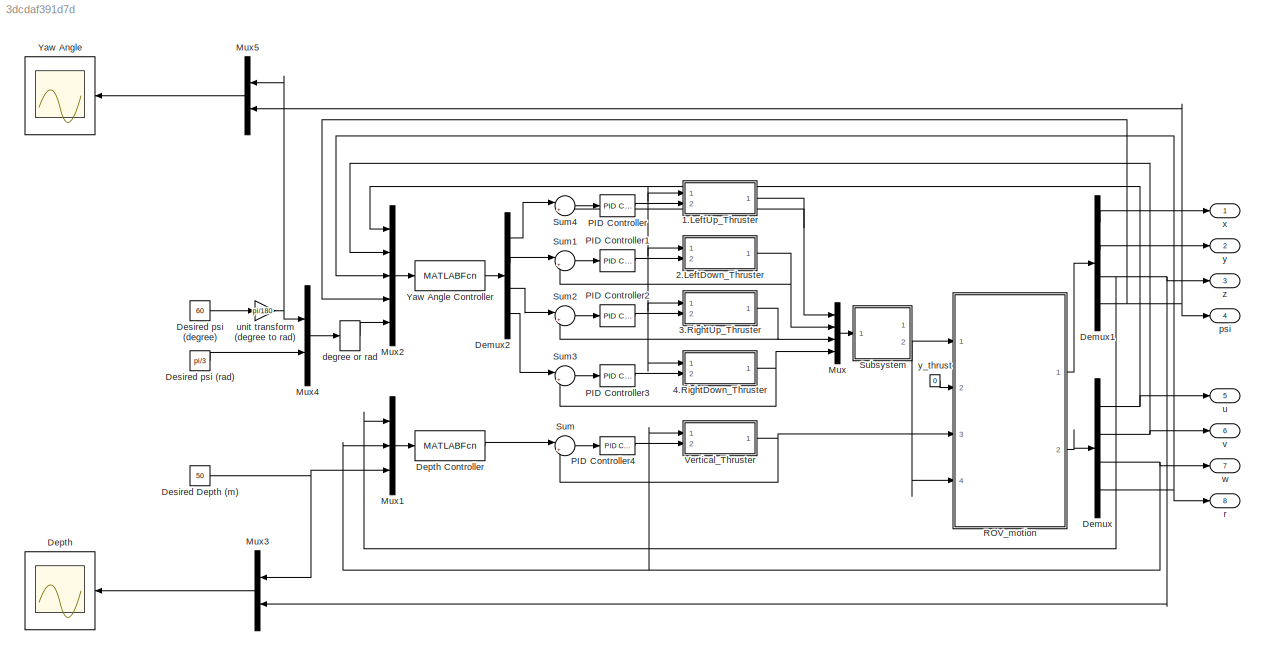
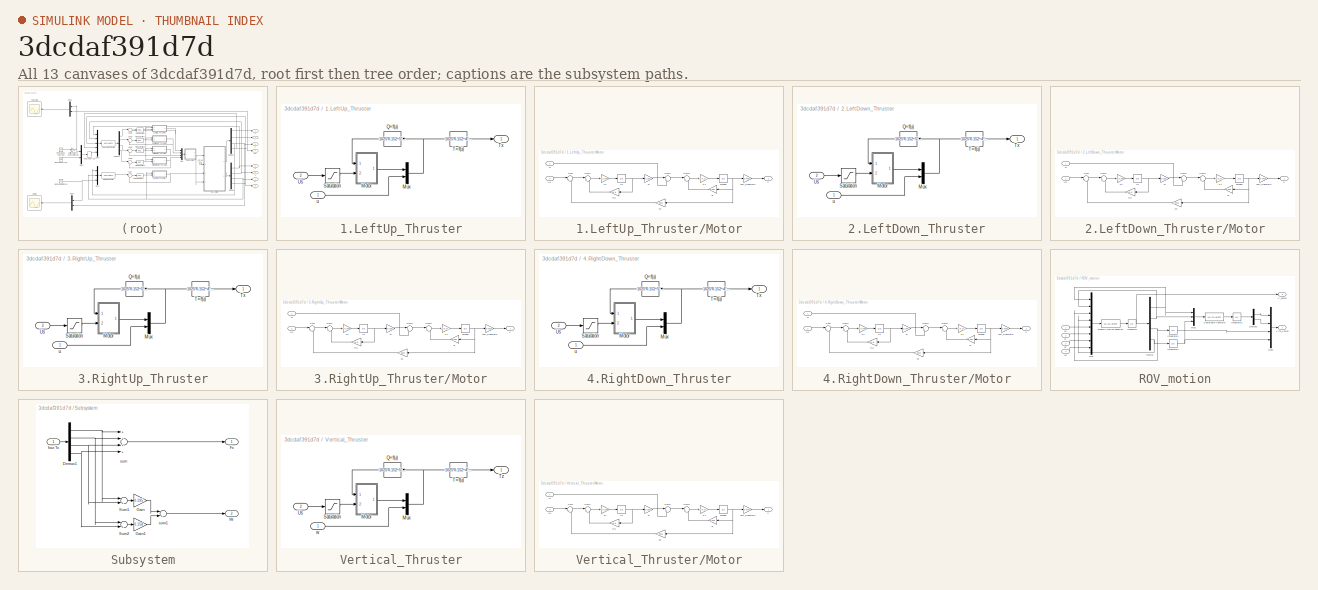
[diagram: thumbnail index - all 13 canvases of the model, root first then tree order]
MODEL slx_3dcdaf391d7d
KIND model
CONFIG AbsTol = auto
CONFIG EnableMultiTasking = off
CONFIG FixedStep = auto
CONFIG MaxStep = auto
CONFIG MinStep = auto
CONFIG RelTol = 1e-3
CONFIG SampleTimeConstraint = Unconstrained
CONFIG Solver = VariableStepAuto
CONFIG SolverName = VariableStepAuto
CONFIG StartTime = 0.0
CONFIG StopTime = 500
BLOCK [SubSystem] 1.LeftUp_Thruster
  Ports = [2, 1]
  RequestExecContextInheritance = off
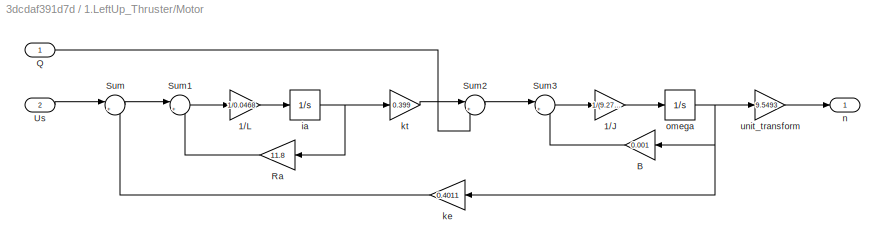
BLOCK [SubSystem] 1.LeftUp_Thruster/Motor
  Ports = [2, 1]
  RequestExecContextInheritance = off
BLOCK [Gain] 1.LeftUp_Thruster/Motor/1//J
  Gain = 1/(9.275e-4)
  OutDataTypeStr = Inherit: Inherit via internal rule
  ParamDataTypeStr = Inherit: Inherit via internal rule
  SaturateOnIntegerOverflow = off
BLOCK [Gain] 1.LeftUp_Thruster/Motor/1//L
  Gain = 1/0.0468
  OutDataTypeStr = Inherit: Inherit via internal rule
  ParamDataTypeStr = Inherit: Inherit via internal rule
  SaturateOnIntegerOverflow = off
BLOCK [Gain] 1.LeftUp_Thruster/Motor/B
  Gain = 0.001
  OutDataTypeStr = Inherit: Inherit via internal rule
  ParamDataTypeStr = Inherit: Inherit via internal rule
  SaturateOnIntegerOverflow = off
BLOCK [Inport] 1.LeftUp_Thruster/Motor/Q
  IconDisplay = Port number
BLOCK [Gain] 1.LeftUp_Thruster/Motor/Ra
  Gain = 11.8
  OutDataTypeStr = Inherit: Inherit via internal rule
  ParamDataTypeStr = Inherit: Inherit via internal rule
  SaturateOnIntegerOverflow = off
BLOCK [Sum] 1.LeftUp_Thruster/Motor/Sum
  IconShape = round
  InputSameDT = off
  Inputs = |+-
  OutDataTypeStr = Inherit: Inherit via internal rule
  Ports = [2, 1]
  SaturateOnIntegerOverflow = off
BLOCK [Sum] 1.LeftUp_Thruster/Motor/Sum1
  IconShape = round
  InputSameDT = off
  Inputs = |+-
  OutDataTypeStr = Inherit: Inherit via internal rule
  Ports = [2, 1]
  SaturateOnIntegerOverflow = off
BLOCK [Sum] 1.LeftUp_Thruster/Motor/Sum2
  IconShape = round
  InputSameDT = off
  Inputs = |+-
  OutDataTypeStr = Inherit: Inherit via internal rule
  Ports = [2, 1]
  SaturateOnIntegerOverflow = off
BLOCK [Sum] 1.LeftUp_Thruster/Motor/Sum3
  IconShape = round
  InputSameDT = off
  Inputs = |+-
  OutDataTypeStr = Inherit: Inherit via internal rule
  Ports = [2, 1]
  SaturateOnIntegerOverflow = off
BLOCK [Inport] 1.LeftUp_Thruster/Motor/Us
  IconDisplay = Port number
  Port = 2
BLOCK [Integrator] 1.LeftUp_Thruster/Motor/ia
  Ports = [1, 1]
BLOCK [Gain] 1.LeftUp_Thruster/Motor/ke
  Gain = 0.4011
  OutDataTypeStr = Inherit: Inherit via internal rule
  ParamDataTypeStr = Inherit: Inherit via internal rule
  SaturateOnIntegerOverflow = off
BLOCK [Gain] 1.LeftUp_Thruster/Motor/kt
  Gain = 0.399
  OutDataTypeStr = Inherit: Inherit via internal rule
  ParamDataTypeStr = Inherit: Inherit via internal rule
  SaturateOnIntegerOverflow = off
BLOCK [Outport] 1.LeftUp_Thruster/Motor/n
  IconDisplay = Port number
BLOCK [Integrator] 1.LeftUp_Thruster/Motor/omega
  Ports = [1, 1]
BLOCK [Gain] 1.LeftUp_Thruster/Motor/unit_transform
  Gain = 9.5493
  OutDataTypeStr = Inherit: Inherit via internal rule
  ParamDataTypeStr = Inherit: Inherit via internal rule
  SaturateOnIntegerOverflow = off
BLOCK [Mux] 1.LeftUp_Thruster/Mux
  DisplayOption = bar
  Inputs = 2
  Ports = [2, 1]
BLOCK [Fcn] 1.LeftUp_Thruster/Q=f(u)
  Expr = 1025*0.152^5*(0.0271*u(1)^2-0.0157*u(1)*0.7*u(2)/0.152)*sgn(u(1))
BLOCK [Saturate] 1.LeftUp_Thruster/Saturation
  InputPortMap = u0
  LowerLimit = -100
  Ports = [1, 1]
  UpperLimit = 100
BLOCK [Fcn] 1.LeftUp_Thruster/T=f(u)
  Expr = 1025*0.152^4*(0.2299*u(1)^2-0.2251*u(1)*0.7*u(2)/0.152)*sgn(u(1))
BLOCK [Outport] 1.LeftUp_Thruster/Tx
  IconDisplay = Port number
BLOCK [Inport] 1.LeftUp_Thruster/Us
  IconDisplay = Port number
  Port = 2
BLOCK [Inport] 1.LeftUp_Thruster/u
  IconDisplay = Port number
BLOCK [SubSystem] 2.LeftDown_Thruster
  Ports = [2, 1]
  RequestExecContextInheritance = off
BLOCK [SubSystem] 2.LeftDown_Thruster/Motor
  Ports = [2, 1]
  RequestExecContextInheritance = off
BLOCK [Gain] 2.LeftDown_Thruster/Motor/1//J
  Gain = 1/(9.275e-4)
  OutDataTypeStr = Inherit: Inherit via internal rule
  ParamDataTypeStr = Inherit: Inherit via internal rule
  SaturateOnIntegerOverflow = off
BLOCK [Gain] 2.LeftDown_Thruster/Motor/1//L
  Gain = 1/0.0468
  OutDataTypeStr = Inherit: Inherit via internal rule
  ParamDataTypeStr = Inherit: Inherit via internal rule
  SaturateOnIntegerOverflow = off
BLOCK [Gain] 2.LeftDown_Thruster/Motor/B
  Gain = 0.001
  OutDataTypeStr = Inherit: Inherit via internal rule
  ParamDataTypeStr = Inherit: Inherit via internal rule
  SaturateOnIntegerOverflow = off
BLOCK [Inport] 2.LeftDown_Thruster/Motor/Q
  IconDisplay = Port number
BLOCK [Gain] 2.LeftDown_Thruster/Motor/Ra
  Gain = 11.8
  OutDataTypeStr = Inherit: Inherit via internal rule
  ParamDataTypeStr = Inherit: Inherit via internal rule
  SaturateOnIntegerOverflow = off
BLOCK [Sum] 2.LeftDown_Thruster/Motor/Sum
  IconShape = round
  InputSameDT = off
  Inputs = |+-
  OutDataTypeStr = Inherit: Inherit via internal rule
  Ports = [2, 1]
  SaturateOnIntegerOverflow = off
BLOCK [Sum] 2.LeftDown_Thruster/Motor/Sum1
  IconShape = round
  InputSameDT = off
  Inputs = |+-
  OutDataTypeStr = Inherit: Inherit via internal rule
  Ports = [2, 1]
  SaturateOnIntegerOverflow = off
BLOCK [Sum] 2.LeftDown_Thruster/Motor/Sum2
  IconShape = round
  InputSameDT = off
  Inputs = |+-
  OutDataTypeStr = Inherit: Inherit via internal rule
  Ports = [2, 1]
  SaturateOnIntegerOverflow = off
BLOCK [Sum] 2.LeftDown_Thruster/Motor/Sum3
  IconShape = round
  InputSameDT = off
  Inputs = |+-
  OutDataTypeStr = Inherit: Inherit via internal rule
  Ports = [2, 1]
  SaturateOnIntegerOverflow = off
BLOCK [Inport] 2.LeftDown_Thruster/Motor/Us
  IconDisplay = Port number
  Port = 2
BLOCK [Integrator] 2.LeftDown_Thruster/Motor/ia
  Ports = [1, 1]
BLOCK [Gain] 2.LeftDown_Thruster/Motor/ke
  Gain = 0.4011
  OutDataTypeStr = Inherit: Inherit via internal rule
  ParamDataTypeStr = Inherit: Inherit via internal rule
  SaturateOnIntegerOverflow = off
BLOCK [Gain] 2.LeftDown_Thruster/Motor/kt
  Gain = 0.399
  OutDataTypeStr = Inherit: Inherit via internal rule
  ParamDataTypeStr = Inherit: Inherit via internal rule
  SaturateOnIntegerOverflow = off
BLOCK [Outport] 2.LeftDown_Thruster/Motor/n
  IconDisplay = Port number
BLOCK [Integrator] 2.LeftDown_Thruster/Motor/omega
  Ports = [1, 1]
BLOCK [Gain] 2.LeftDown_Thruster/Motor/unit_transform
  Gain = 9.5493
  OutDataTypeStr = Inherit: Inherit via internal rule
  ParamDataTypeStr = Inherit: Inherit via internal rule
  SaturateOnIntegerOverflow = off
BLOCK [Mux] 2.LeftDown_Thruster/Mux
  DisplayOption = bar
  Inputs = 2
  Ports = [2, 1]
BLOCK [Fcn] 2.LeftDown_Thruster/Q=f(u)
  Expr = 1025*0.152^5*(0.0271*u(1)^2-0.0157*u(1)*0.7*u(2)/0.152)*sgn(u(1))
BLOCK [Saturate] 2.LeftDown_Thruster/Saturation
  InputPortMap = u0
  LowerLimit = -100
  Ports = [1, 1]
  UpperLimit = 100
BLOCK [Fcn] 2.LeftDown_Thruster/T=f(u)
  Expr = 1025*0.152^4*(0.2299*u(1)^2-0.2251*u(1)*0.7*u(2)/0.152)*sgn(u(1))
BLOCK [Outport] 2.LeftDown_Thruster/Tx
  IconDisplay = Port number
BLOCK [Inport] 2.LeftDown_Thruster/Us
  IconDisplay = Port number
  Port = 2
BLOCK [Inport] 2.LeftDown_Thruster/u
  IconDisplay = Port number
BLOCK [SubSystem] 3.RightUp_Thruster
  Ports = [2, 1]
  RequestExecContextInheritance = off
BLOCK [SubSystem] 3.RightUp_Thruster/Motor
  Ports = [2, 1]
  RequestExecContextInheritance = off
BLOCK [Gain] 3.RightUp_Thruster/Motor/1//J
  Gain = 1/(9.275e-4)
  OutDataTypeStr = Inherit: Inherit via internal rule
  ParamDataTypeStr = Inherit: Inherit via internal rule
  SaturateOnIntegerOverflow = off
BLOCK [Gain] 3.RightUp_Thruster/Motor/1//L
  Gain = 1/0.0468
  OutDataTypeStr = Inherit: Inherit via internal rule
  ParamDataTypeStr = Inherit: Inherit via internal rule
  SaturateOnIntegerOverflow = off
BLOCK [Gain] 3.RightUp_Thruster/Motor/B
  Gain = 0.001
  OutDataTypeStr = Inherit: Inherit via internal rule
  ParamDataTypeStr = Inherit: Inherit via internal rule
  SaturateOnIntegerOverflow = off
BLOCK [Inport] 3.RightUp_Thruster/Motor/Q
  IconDisplay = Port number
BLOCK [Gain] 3.RightUp_Thruster/Motor/Ra
  Gain = 11.8
  OutDataTypeStr = Inherit: Inherit via internal rule
  ParamDataTypeStr = Inherit: Inherit via internal rule
  SaturateOnIntegerOverflow = off
BLOCK [Sum] 3.RightUp_Thruster/Motor/Sum
  IconShape = round
  InputSameDT = off
  Inputs = |+-
  OutDataTypeStr = Inherit: Inherit via internal rule
  Ports = [2, 1]
  SaturateOnIntegerOverflow = off
BLOCK [Sum] 3.RightUp_Thruster/Motor/Sum1
  IconShape = round
  InputSameDT = off
  Inputs = |+-
  OutDataTypeStr = Inherit: Inherit via internal rule
  Ports = [2, 1]
  SaturateOnIntegerOverflow = off
BLOCK [Sum] 3.RightUp_Thruster/Motor/Sum2
  IconShape = round
  InputSameDT = off
  Inputs = |+-
  OutDataTypeStr = Inherit: Inherit via internal rule
  Ports = [2, 1]
  SaturateOnIntegerOverflow = off
BLOCK [Sum] 3.RightUp_Thruster/Motor/Sum3
  IconShape = round
  InputSameDT = off
  Inputs = |+-
  OutDataTypeStr = Inherit: Inherit via internal rule
  Ports = [2, 1]
  SaturateOnIntegerOverflow = off
BLOCK [Inport] 3.RightUp_Thruster/Motor/Us
  IconDisplay = Port number
  Port = 2
BLOCK [Integrator] 3.RightUp_Thruster/Motor/ia
  Ports = [1, 1]
BLOCK [Gain] 3.RightUp_Thruster/Motor/ke
  Gain = 0.4011
  OutDataTypeStr = Inherit: Inherit via internal rule
  ParamDataTypeStr = Inherit: Inherit via internal rule
  SaturateOnIntegerOverflow = off
BLOCK [Gain] 3.RightUp_Thruster/Motor/kt
  Gain = 0.399
  OutDataTypeStr = Inherit: Inherit via internal rule
  ParamDataTypeStr = Inherit: Inherit via internal rule
  SaturateOnIntegerOverflow = off
BLOCK [Outport] 3.RightUp_Thruster/Motor/n
  IconDisplay = Port number
BLOCK [Integrator] 3.RightUp_Thruster/Motor/omega
  Ports = [1, 1]
BLOCK [Gain] 3.RightUp_Thruster/Motor/unit_transform
  Gain = 9.5493
  OutDataTypeStr = Inherit: Inherit via internal rule
  ParamDataTypeStr = Inherit: Inherit via internal rule
  SaturateOnIntegerOverflow = off
BLOCK [Mux] 3.RightUp_Thruster/Mux
  DisplayOption = bar
  Inputs = 2
  Ports = [2, 1]
BLOCK [Fcn] 3.RightUp_Thruster/Q=f(u)
  Expr = 1025*0.152^5*(0.0271*u(1)^2-0.0157*u(1)*0.7*u(2)/0.152)*sgn(u(1))
BLOCK [Saturate] 3.RightUp_Thruster/Saturation
  InputPortMap = u0
  LowerLimit = -100
  Ports = [1, 1]
  UpperLimit = 100
BLOCK [Fcn] 3.RightUp_Thruster/T=f(u)
  Expr = 1025*0.152^4*(0.2299*u(1)^2-0.2251*u(1)*0.7*u(2)/0.152)*sgn(u(1))
BLOCK [Outport] 3.RightUp_Thruster/Tx
  IconDisplay = Port number
BLOCK [Inport] 3.RightUp_Thruster/Us
  IconDisplay = Port number
  Port = 2
BLOCK [Inport] 3.RightUp_Thruster/u
  IconDisplay = Port number
BLOCK [SubSystem] 4.RightDown_Thruster
  Ports = [2, 1]
  RequestExecContextInheritance = off
BLOCK [SubSystem] 4.RightDown_Thruster/Motor
  Ports = [2, 1]
  RequestExecContextInheritance = off
BLOCK [Gain] 4.RightDown_Thruster/Motor/1//J
  Gain = 1/(9.275e-4)
  OutDataTypeStr = Inherit: Inherit via internal rule
  ParamDataTypeStr = Inherit: Inherit via internal rule
  SaturateOnIntegerOverflow = off
BLOCK [Gain] 4.RightDown_Thruster/Motor/1//L
  Gain = 1/0.0468
  OutDataTypeStr = Inherit: Inherit via internal rule
  ParamDataTypeStr = Inherit: Inherit via internal rule
  SaturateOnIntegerOverflow = off
BLOCK [Gain] 4.RightDown_Thruster/Motor/B
  Gain = 0.001
  OutDataTypeStr = Inherit: Inherit via internal rule
  ParamDataTypeStr = Inherit: Inherit via internal rule
  SaturateOnIntegerOverflow = off
BLOCK [Inport] 4.RightDown_Thruster/Motor/Q
  IconDisplay = Port number
BLOCK [Gain] 4.RightDown_Thruster/Motor/Ra
  Gain = 11.8
  OutDataTypeStr = Inherit: Inherit via internal rule
  ParamDataTypeStr = Inherit: Inherit via internal rule
  SaturateOnIntegerOverflow = off
BLOCK [Sum] 4.RightDown_Thruster/Motor/Sum
  IconShape = round
  InputSameDT = off
  Inputs = |+-
  OutDataTypeStr = Inherit: Inherit via internal rule
  Ports = [2, 1]
  SaturateOnIntegerOverflow = off
BLOCK [Sum] 4.RightDown_Thruster/Motor/Sum1
  IconShape = round
  InputSameDT = off
  Inputs = |+-
  OutDataTypeStr = Inherit: Inherit via internal rule
  Ports = [2, 1]
  SaturateOnIntegerOverflow = off
BLOCK [Sum] 4.RightDown_Thruster/Motor/Sum2
  IconShape = round
  InputSameDT = off
  Inputs = |+-
  OutDataTypeStr = Inherit: Inherit via internal rule
  Ports = [2, 1]
  SaturateOnIntegerOverflow = off
BLOCK [Sum] 4.RightDown_Thruster/Motor/Sum3
  IconShape = round
  InputSameDT = off
  Inputs = |+-
  OutDataTypeStr = Inherit: Inherit via internal rule
  Ports = [2, 1]
  SaturateOnIntegerOverflow = off
BLOCK [Inport] 4.RightDown_Thruster/Motor/Us
  IconDisplay = Port number
  Port = 2
BLOCK [Integrator] 4.RightDown_Thruster/Motor/ia
  Ports = [1, 1]
BLOCK [Gain] 4.RightDown_Thruster/Motor/ke
  Gain = 0.4011
  OutDataTypeStr = Inherit: Inherit via internal rule
  ParamDataTypeStr = Inherit: Inherit via internal rule
  SaturateOnIntegerOverflow = off
BLOCK [Gain] 4.RightDown_Thruster/Motor/kt
  Gain = 0.399
  OutDataTypeStr = Inherit: Inherit via internal rule
  ParamDataTypeStr = Inherit: Inherit via internal rule
  SaturateOnIntegerOverflow = off
BLOCK [Outport] 4.RightDown_Thruster/Motor/n
  IconDisplay = Port number
BLOCK [Integrator] 4.RightDown_Thruster/Motor/omega
  Ports = [1, 1]
BLOCK [Gain] 4.RightDown_Thruster/Motor/unit_transform
  Gain = 9.5493
  OutDataTypeStr = Inherit: Inherit via internal rule
  ParamDataTypeStr = Inherit: Inherit via internal rule
  SaturateOnIntegerOverflow = off
BLOCK [Mux] 4.RightDown_Thruster/Mux
  DisplayOption = bar
  Inputs = 2
  Ports = [2, 1]
BLOCK [Fcn] 4.RightDown_Thruster/Q=f(u)
  Expr = 1025*0.152^5*(0.0271*u(1)^2-0.0157*u(1)*0.7*u(2)/0.152)*sgn(u(1))
BLOCK [Saturate] 4.RightDown_Thruster/Saturation
  InputPortMap = u0
  LowerLimit = -100
  Ports = [1, 1]
  UpperLimit = 100
BLOCK [Fcn] 4.RightDown_Thruster/T=f(u)
  Expr = 1025*0.152^4*(0.2299*u(1)^2-0.2251*u(1)*0.7*u(2)/0.152)*sgn(u(1))
BLOCK [Outport] 4.RightDown_Thruster/Tx
  IconDisplay = Port number
BLOCK [Inport] 4.RightDown_Thruster/Us
  IconDisplay = Port number
  Port = 2
BLOCK [Inport] 4.RightDown_Thruster/u
  IconDisplay = Port number
BLOCK [Demux] Demux
  DisplayOption = bar
  Ports = [1, 4]
BLOCK [Demux] Demux1
  DisplayOption = bar
  Ports = [1, 4]
BLOCK [Demux] Demux2
  DisplayOption = bar
  Ports = [1, 4]
BLOCK [Scope] Depth
  Floating = off
  NumInputPorts = 1
  Ports = [1]
  ScopeSpecificationString = Simulink.scopes.TimeScopeBlockCfg('CurrentConfiguration', extmgr.ConfigurationSet(extmgr.Configuration('Core','General UI',true),extmgr.Configuration('Core','Source UI',true),extmgr.Configuration('Sources','WiredSimulink',true),extmgr.Configuration('Visuals','Time Domain',true,'SerializedDisplays',{struct('MinYLimReal','-6.25','MaxYLimReal','56.25','YLabelReal','','MinYLimMag','0.00000','MaxYLimMa...<+1477ch>
BLOCK [MATLABFcn] Depth Controller
  MATLABFcn = Depth_Controller
  OutputDimensions = 1
  Ports = [1, 1]
BLOCK [Constant] Desired Depth (m)
  Value = 50
BLOCK [Constant] Desired psi (degree)
  Value = 60
BLOCK [Constant] Desired psi (rad)
  Value = pi/3
BLOCK [Mux] Mux
  DisplayOption = bar
  Ports = [4, 1]
BLOCK [Mux] Mux1
  DisplayOption = bar
  Inputs = 3
  Ports = [3, 1]
BLOCK [Mux] Mux2
  DisplayOption = bar
  Inputs = 5
  Ports = [5, 1]
BLOCK [Mux] Mux3
  DisplayOption = bar
  Inputs = 2
  Ports = [2, 1]
BLOCK [Mux] Mux4
  DisplayOption = bar
  Inputs = 2
  Ports = [2, 1]
BLOCK [Mux] Mux5
  DisplayOption = bar
  Inputs = 2
  Ports = [2, 1]
BLOCK [Reference] PID Controller  REF=simulink/Continuous/PID Controller
  Ports = [1, 1]
  SourceBlock = simulink/Continuous/PID Controller
  SourceProductBaseCode = SL
  SourceProductName = Simulink
  SourceType = PID 1dof
BLOCK [Reference] PID Controller1  REF=simulink/Continuous/PID Controller
  Ports = [1, 1]
  SourceBlock = simulink/Continuous/PID Controller
  SourceProductBaseCode = SL
  SourceProductName = Simulink
  SourceType = PID 1dof
BLOCK [Reference] PID Controller2  REF=simulink/Continuous/PID Controller
  Ports = [1, 1]
  SourceBlock = simulink/Continuous/PID Controller
  SourceProductBaseCode = SL
  SourceProductName = Simulink
  SourceType = PID 1dof
BLOCK [Reference] PID Controller3  REF=simulink/Continuous/PID Controller
  Ports = [1, 1]
  SourceBlock = simulink/Continuous/PID Controller
  SourceProductBaseCode = SL
  SourceProductName = Simulink
  SourceType = PID 1dof
BLOCK [Reference] PID Controller4  REF=simulink/Continuous/PID Controller
  Ports = [1, 1]
  SourceBlock = simulink/Continuous/PID Controller
  SourceProductBaseCode = SL
  SourceProductName = Simulink
  SourceType = PID 1dof
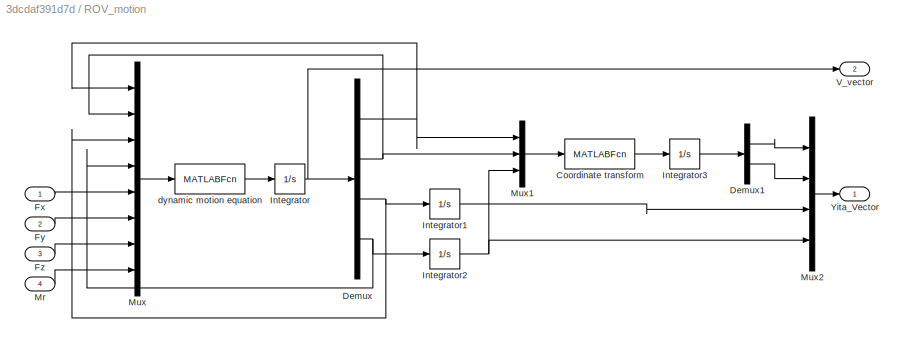
BLOCK [SubSystem] ROV_motion
  Ports = [4, 2]
  RequestExecContextInheritance = off
BLOCK [MATLABFcn] ROV_motion/Coordinate transform
  MATLABFcn = Coord_Trans
  OutputDimensions = 2
  Ports = [1, 1]
BLOCK [Demux] ROV_motion/Demux
  DisplayOption = bar
  Ports = [1, 4]
BLOCK [Demux] ROV_motion/Demux1
  DisplayOption = bar
  Outputs = 2
  Ports = [1, 2]
BLOCK [Inport] ROV_motion/Fx
  IconDisplay = Port number
BLOCK [Inport] ROV_motion/Fy
  IconDisplay = Port number
  Port = 2
BLOCK [Inport] ROV_motion/Fz
  IconDisplay = Port number
  Port = 3
BLOCK [Integrator] ROV_motion/Integrator
  Ports = [1, 1]
BLOCK [Integrator] ROV_motion/Integrator1
  Ports = [1, 1]
BLOCK [Integrator] ROV_motion/Integrator2
  Ports = [1, 1]
BLOCK [Integrator] ROV_motion/Integrator3
  Ports = [1, 1]
BLOCK [Inport] ROV_motion/Mr
  IconDisplay = Port number
  Port = 4
BLOCK [Mux] ROV_motion/Mux
  DisplayOption = bar
  Inputs = 8
  Ports = [8, 1]
BLOCK [Mux] ROV_motion/Mux1
  DisplayOption = bar
  Inputs = 3
  Ports = [3, 1]
BLOCK [Mux] ROV_motion/Mux2
  DisplayOption = bar
  Ports = [4, 1]
BLOCK [Outport] ROV_motion/V_vector
  IconDisplay = Port number
  Port = 2
BLOCK [Outport] ROV_motion/Yita_Vector
  IconDisplay = Port number
BLOCK [MATLABFcn] ROV_motion/dynamic motion equation
  MATLABFcn = DynMoEqu
  OutputDimensions = 4
  Ports = [1, 1]
BLOCK [SubSystem] Subsystem
  Ports = [1, 2]
  RequestExecContextInheritance = off
BLOCK [Demux] Subsystem/Demux1
  DisplayOption = bar
  Ports = [1, 4]
BLOCK [Outport] Subsystem/Fx
  IconDisplay = Port number
BLOCK [Gain] Subsystem/Gain
  Gain = 0.195
  OutDataTypeStr = Inherit: Inherit via internal rule
  ParamDataTypeStr = Inherit: Inherit via internal rule
  SaturateOnIntegerOverflow = off
BLOCK [Gain] Subsystem/Gain1
  Gain = 0.158
  OutDataTypeStr = Inherit: Inherit via internal rule
  ParamDataTypeStr = Inherit: Inherit via internal rule
  SaturateOnIntegerOverflow = off
BLOCK [Outport] Subsystem/Mr
  IconDisplay = Port number
  Port = 2
BLOCK [Sum] Subsystem/Sum1
  InputSameDT = off
  Inputs = |+-
  OutDataTypeStr = Inherit: Inherit via internal rule
  Ports = [2, 1]
  SaturateOnIntegerOverflow = off
BLOCK [Sum] Subsystem/Sum2
  InputSameDT = off
  Inputs = |+-
  OutDataTypeStr = Inherit: Inherit via internal rule
  Ports = [2, 1]
  SaturateOnIntegerOverflow = off
BLOCK [Inport] Subsystem/four Tx
  IconDisplay = Port number
BLOCK [Sum] Subsystem/sum
  InputSameDT = off
  Inputs = ++++
  OutDataTypeStr = Inherit: Inherit via internal rule
  Ports = [4, 1]
  SaturateOnIntegerOverflow = off
BLOCK [Sum] Subsystem/sum1
  InputSameDT = off
  Inputs = |++
  OutDataTypeStr = Inherit: Inherit via internal rule
  Ports = [2, 1]
  SaturateOnIntegerOverflow = off
BLOCK [Sum] Sum
  IconShape = round
  InputSameDT = off
  Inputs = |+-
  OutDataTypeStr = Inherit: Inherit via internal rule
  Ports = [2, 1]
  SaturateOnIntegerOverflow = off
BLOCK [Sum] Sum1
  IconShape = round
  InputSameDT = off
  Inputs = |+-
  OutDataTypeStr = Inherit: Inherit via internal rule
  Ports = [2, 1]
  SaturateOnIntegerOverflow = off
BLOCK [Sum] Sum2
  IconShape = round
  InputSameDT = off
  Inputs = |+-
  OutDataTypeStr = Inherit: Inherit via internal rule
  Ports = [2, 1]
  SaturateOnIntegerOverflow = off
BLOCK [Sum] Sum3
  IconShape = round
  InputSameDT = off
  Inputs = |+-
  OutDataTypeStr = Inherit: Inherit via internal rule
  Ports = [2, 1]
  SaturateOnIntegerOverflow = off
BLOCK [Sum] Sum4
  IconShape = round
  InputSameDT = off
  Inputs = |+-
  OutDataTypeStr = Inherit: Inherit via internal rule
  Ports = [2, 1]
  SaturateOnIntegerOverflow = off
BLOCK [SubSystem] Vertical_Thruster
  Ports = [2, 1]
  RequestExecContextInheritance = off
BLOCK [SubSystem] Vertical_Thruster/Motor
  Ports = [2, 1]
  RequestExecContextInheritance = off
BLOCK [Gain] Vertical_Thruster/Motor/1//J
  Gain = 1/(9.275e-4)
  OutDataTypeStr = Inherit: Inherit via internal rule
  ParamDataTypeStr = Inherit: Inherit via internal rule
  SaturateOnIntegerOverflow = off
BLOCK [Gain] Vertical_Thruster/Motor/1//L
  Gain = 1/0.0468
  OutDataTypeStr = Inherit: Inherit via internal rule
  ParamDataTypeStr = Inherit: Inherit via internal rule
  SaturateOnIntegerOverflow = off
BLOCK [Gain] Vertical_Thruster/Motor/B
  Gain = 0.001
  OutDataTypeStr = Inherit: Inherit via internal rule
  ParamDataTypeStr = Inherit: Inherit via internal rule
  SaturateOnIntegerOverflow = off
BLOCK [Inport] Vertical_Thruster/Motor/Q
  IconDisplay = Port number
BLOCK [Gain] Vertical_Thruster/Motor/Ra
  Gain = 11.8
  OutDataTypeStr = Inherit: Inherit via internal rule
  ParamDataTypeStr = Inherit: Inherit via internal rule
  SaturateOnIntegerOverflow = off
BLOCK [Sum] Vertical_Thruster/Motor/Sum
  IconShape = round
  InputSameDT = off
  Inputs = |+-
  OutDataTypeStr = Inherit: Inherit via internal rule
  Ports = [2, 1]
  SaturateOnIntegerOverflow = off
BLOCK [Sum] Vertical_Thruster/Motor/Sum1
  IconShape = round
  InputSameDT = off
  Inputs = |+-
  OutDataTypeStr = Inherit: Inherit via internal rule
  Ports = [2, 1]
  SaturateOnIntegerOverflow = off
BLOCK [Sum] Vertical_Thruster/Motor/Sum2
  IconShape = round
  InputSameDT = off
  Inputs = |+-
  OutDataTypeStr = Inherit: Inherit via internal rule
  Ports = [2, 1]
  SaturateOnIntegerOverflow = off
BLOCK [Sum] Vertical_Thruster/Motor/Sum3
  IconShape = round
  InputSameDT = off
  Inputs = |+-
  OutDataTypeStr = Inherit: Inherit via internal rule
  Ports = [2, 1]
  SaturateOnIntegerOverflow = off
BLOCK [Inport] Vertical_Thruster/Motor/Us
  IconDisplay = Port number
  Port = 2
BLOCK [Integrator] Vertical_Thruster/Motor/ia
  Ports = [1, 1]
BLOCK [Gain] Vertical_Thruster/Motor/ke
  Gain = 0.4011
  OutDataTypeStr = Inherit: Inherit via internal rule
  ParamDataTypeStr = Inherit: Inherit via internal rule
  SaturateOnIntegerOverflow = off
BLOCK [Gain] Vertical_Thruster/Motor/kt
  Gain = 0.399
  OutDataTypeStr = Inherit: Inherit via internal rule
  ParamDataTypeStr = Inherit: Inherit via internal rule
  SaturateOnIntegerOverflow = off
BLOCK [Outport] Vertical_Thruster/Motor/n
  IconDisplay = Port number
BLOCK [Integrator] Vertical_Thruster/Motor/omega
  Ports = [1, 1]
BLOCK [Gain] Vertical_Thruster/Motor/unit_transform
  Gain = 9.5493
  OutDataTypeStr = Inherit: Inherit via internal rule
  ParamDataTypeStr = Inherit: Inherit via internal rule
  SaturateOnIntegerOverflow = off
BLOCK [Mux] Vertical_Thruster/Mux
  DisplayOption = bar
  Inputs = 2
  Ports = [2, 1]
BLOCK [Fcn] Vertical_Thruster/Q=f(u)
  Expr = 1025*0.152^5*(0.0271*u(1)^2-0.0157*u(1)*0.7*u(2)/0.152)*sgn(u(1))
BLOCK [Saturate] Vertical_Thruster/Saturation
  InputPortMap = u0
  LowerLimit = -100
  Ports = [1, 1]
  UpperLimit = 100
BLOCK [Fcn] Vertical_Thruster/T=f(u)
  Expr = 1025*0.152^4*(0.2299*u(1)^2-0.2251*u(1)*0.7*u(2)/0.152)*sgn(u(1))
BLOCK [Outport] Vertical_Thruster/Tz
  IconDisplay = Port number
BLOCK [Inport] Vertical_Thruster/Us
  IconDisplay = Port number
  Port = 2
BLOCK [Inport] Vertical_Thruster/w
  IconDisplay = Port number
BLOCK [Scope] Yaw Angle
  Floating = off
  NumInputPorts = 1
  Ports = [1]
  ScopeSpecificationString = Simulink.scopes.TimeScopeBlockCfg('CurrentConfiguration', extmgr.ConfigurationSet(extmgr.Configuration('Core','General UI',true),extmgr.Configuration('Core','Source UI',true),extmgr.Configuration('Sources','WiredSimulink',true,'DataLoggingVariableName','ScopeData1'),extmgr.Configuration('Visuals','Time Domain',true,'SerializedDisplays',{struct('MinYLimReal','-0.1309','MaxYLimReal','1.1781','YLabel...<+1525ch>
BLOCK [MATLABFcn] Yaw Angle Controller
  MATLABFcn = YawAngle_Controller
  OutputDimensions = 4
  Ports = [1, 1]
BLOCK [Selector] degree or rad
  IndexOptions = Index vector (dialog)
  Indices = 1
  InputPortWidth = 2
  OutputSizes = 1
  Ports = [1, 1]
BLOCK [Outport] psi
  IconDisplay = Port number
  Port = 4
BLOCK [Outport] r
  IconDisplay = Port number
  Port = 8
BLOCK [Outport] u
  IconDisplay = Port number
  Port = 5
BLOCK [Gain] unit transform (degree to rad)
  Gain = pi/180
  OutDataTypeStr = Inherit: Inherit via internal rule
  ParamDataTypeStr = Inherit: Inherit via internal rule
  SaturateOnIntegerOverflow = off
BLOCK [Outport] v
  IconDisplay = Port number
  Port = 6
BLOCK [Outport] w
  IconDisplay = Port number
  Port = 7
BLOCK [Outport] x
  IconDisplay = Port number
BLOCK [Outport] y
  IconDisplay = Port number
  Port = 2
BLOCK [Constant] y_thrust
  Value = 0
BLOCK [Outport] z
  IconDisplay = Port number
  Port = 3
LINE 1.LeftUp_Thruster/Motor/1//J:1 -> 1.LeftUp_Thruster/Motor/omega:1
LINE 1.LeftUp_Thruster/Motor/1//L:1 -> 1.LeftUp_Thruster/Motor/ia:1
LINE 1.LeftUp_Thruster/Motor/B:1 -> 1.LeftUp_Thruster/Motor/Sum3:2
LINE 1.LeftUp_Thruster/Motor/Q:1 -> 1.LeftUp_Thruster/Motor/Sum2:2
LINE 1.LeftUp_Thruster/Motor/Ra:1 -> 1.LeftUp_Thruster/Motor/Sum1:2
LINE 1.LeftUp_Thruster/Motor/Sum1:1 -> 1.LeftUp_Thruster/Motor/1//L:1
LINE 1.LeftUp_Thruster/Motor/Sum2:1 -> 1.LeftUp_Thruster/Motor/Sum3:1
LINE 1.LeftUp_Thruster/Motor/Sum3:1 -> 1.LeftUp_Thruster/Motor/1//J:1
LINE 1.LeftUp_Thruster/Motor/Sum:1 -> 1.LeftUp_Thruster/Motor/Sum1:1
LINE 1.LeftUp_Thruster/Motor/Us:1 -> 1.LeftUp_Thruster/Motor/Sum:1
NET 1.LeftUp_Thruster/Motor/ia:1 -> 1.LeftUp_Thruster/Motor/Ra:1, 1.LeftUp_Thruster/Motor/kt:1
LINE 1.LeftUp_Thruster/Motor/ke:1 -> 1.LeftUp_Thruster/Motor/Sum:2
LINE 1.LeftUp_Thruster/Motor/kt:1 -> 1.LeftUp_Thruster/Motor/Sum2:1
NET 1.LeftUp_Thruster/Motor/omega:1 -> 1.LeftUp_Thruster/Motor/B:1, 1.LeftUp_Thruster/Motor/ke:1, 1.LeftUp_Thruster/Motor/unit_transform:1
LINE 1.LeftUp_Thruster/Motor/unit_transform:1 -> 1.LeftUp_Thruster/Motor/n:1
LINE 1.LeftUp_Thruster/Motor:1 -> 1.LeftUp_Thruster/Mux:1
NET 1.LeftUp_Thruster/Mux:1 -> 1.LeftUp_Thruster/Q=f(u):1, 1.LeftUp_Thruster/T=f(u):1
LINE 1.LeftUp_Thruster/Q=f(u):1 -> 1.LeftUp_Thruster/Motor:1
LINE 1.LeftUp_Thruster/Saturation:1 -> 1.LeftUp_Thruster/Motor:2
LINE 1.LeftUp_Thruster/T=f(u):1 -> 1.LeftUp_Thruster/Tx:1
LINE 1.LeftUp_Thruster/Us:1 -> 1.LeftUp_Thruster/Saturation:1
LINE 1.LeftUp_Thruster/u:1 -> 1.LeftUp_Thruster/Mux:2
NET 1.LeftUp_Thruster:1 -> Mux:1, Sum4:2
LINE 2.LeftDown_Thruster/Motor/1//J:1 -> 2.LeftDown_Thruster/Motor/omega:1
LINE 2.LeftDown_Thruster/Motor/1//L:1 -> 2.LeftDown_Thruster/Motor/ia:1
LINE 2.LeftDown_Thruster/Motor/B:1 -> 2.LeftDown_Thruster/Motor/Sum3:2
LINE 2.LeftDown_Thruster/Motor/Q:1 -> 2.LeftDown_Thruster/Motor/Sum2:2
LINE 2.LeftDown_Thruster/Motor/Ra:1 -> 2.LeftDown_Thruster/Motor/Sum1:2
LINE 2.LeftDown_Thruster/Motor/Sum1:1 -> 2.LeftDown_Thruster/Motor/1//L:1
LINE 2.LeftDown_Thruster/Motor/Sum2:1 -> 2.LeftDown_Thruster/Motor/Sum3:1
LINE 2.LeftDown_Thruster/Motor/Sum3:1 -> 2.LeftDown_Thruster/Motor/1//J:1
LINE 2.LeftDown_Thruster/Motor/Sum:1 -> 2.LeftDown_Thruster/Motor/Sum1:1
LINE 2.LeftDown_Thruster/Motor/Us:1 -> 2.LeftDown_Thruster/Motor/Sum:1
NET 2.LeftDown_Thruster/Motor/ia:1 -> 2.LeftDown_Thruster/Motor/Ra:1, 2.LeftDown_Thruster/Motor/kt:1
LINE 2.LeftDown_Thruster/Motor/ke:1 -> 2.LeftDown_Thruster/Motor/Sum:2
LINE 2.LeftDown_Thruster/Motor/kt:1 -> 2.LeftDown_Thruster/Motor/Sum2:1
NET 2.LeftDown_Thruster/Motor/omega:1 -> 2.LeftDown_Thruster/Motor/B:1, 2.LeftDown_Thruster/Motor/ke:1, 2.LeftDown_Thruster/Motor/unit_transform:1
LINE 2.LeftDown_Thruster/Motor/unit_transform:1 -> 2.LeftDown_Thruster/Motor/n:1
LINE 2.LeftDown_Thruster/Motor:1 -> 2.LeftDown_Thruster/Mux:1
NET 2.LeftDown_Thruster/Mux:1 -> 2.LeftDown_Thruster/Q=f(u):1, 2.LeftDown_Thruster/T=f(u):1
LINE 2.LeftDown_Thruster/Q=f(u):1 -> 2.LeftDown_Thruster/Motor:1
LINE 2.LeftDown_Thruster/Saturation:1 -> 2.LeftDown_Thruster/Motor:2
LINE 2.LeftDown_Thruster/T=f(u):1 -> 2.LeftDown_Thruster/Tx:1
LINE 2.LeftDown_Thruster/Us:1 -> 2.LeftDown_Thruster/Saturation:1
LINE 2.LeftDown_Thruster/u:1 -> 2.LeftDown_Thruster/Mux:2
NET 2.LeftDown_Thruster:1 -> Mux:2, Sum1:2
LINE 3.RightUp_Thruster/Motor/1//J:1 -> 3.RightUp_Thruster/Motor/omega:1
LINE 3.RightUp_Thruster/Motor/1//L:1 -> 3.RightUp_Thruster/Motor/ia:1
LINE 3.RightUp_Thruster/Motor/B:1 -> 3.RightUp_Thruster/Motor/Sum3:2
LINE 3.RightUp_Thruster/Motor/Q:1 -> 3.RightUp_Thruster/Motor/Sum2:2
LINE 3.RightUp_Thruster/Motor/Ra:1 -> 3.RightUp_Thruster/Motor/Sum1:2
LINE 3.RightUp_Thruster/Motor/Sum1:1 -> 3.RightUp_Thruster/Motor/1//L:1
LINE 3.RightUp_Thruster/Motor/Sum2:1 -> 3.RightUp_Thruster/Motor/Sum3:1
LINE 3.RightUp_Thruster/Motor/Sum3:1 -> 3.RightUp_Thruster/Motor/1//J:1
LINE 3.RightUp_Thruster/Motor/Sum:1 -> 3.RightUp_Thruster/Motor/Sum1:1
LINE 3.RightUp_Thruster/Motor/Us:1 -> 3.RightUp_Thruster/Motor/Sum:1
NET 3.RightUp_Thruster/Motor/ia:1 -> 3.RightUp_Thruster/Motor/Ra:1, 3.RightUp_Thruster/Motor/kt:1
LINE 3.RightUp_Thruster/Motor/ke:1 -> 3.RightUp_Thruster/Motor/Sum:2
LINE 3.RightUp_Thruster/Motor/kt:1 -> 3.RightUp_Thruster/Motor/Sum2:1
NET 3.RightUp_Thruster/Motor/omega:1 -> 3.RightUp_Thruster/Motor/B:1, 3.RightUp_Thruster/Motor/ke:1, 3.RightUp_Thruster/Motor/unit_transform:1
LINE 3.RightUp_Thruster/Motor/unit_transform:1 -> 3.RightUp_Thruster/Motor/n:1
LINE 3.RightUp_Thruster/Motor:1 -> 3.RightUp_Thruster/Mux:1
NET 3.RightUp_Thruster/Mux:1 -> 3.RightUp_Thruster/Q=f(u):1, 3.RightUp_Thruster/T=f(u):1
LINE 3.RightUp_Thruster/Q=f(u):1 -> 3.RightUp_Thruster/Motor:1
LINE 3.RightUp_Thruster/Saturation:1 -> 3.RightUp_Thruster/Motor:2
LINE 3.RightUp_Thruster/T=f(u):1 -> 3.RightUp_Thruster/Tx:1
LINE 3.RightUp_Thruster/Us:1 -> 3.RightUp_Thruster/Saturation:1
LINE 3.RightUp_Thruster/u:1 -> 3.RightUp_Thruster/Mux:2
NET 3.RightUp_Thruster:1 -> Mux:3, Sum2:2
LINE 4.RightDown_Thruster/Motor/1//J:1 -> 4.RightDown_Thruster/Motor/omega:1
LINE 4.RightDown_Thruster/Motor/1//L:1 -> 4.RightDown_Thruster/Motor/ia:1
LINE 4.RightDown_Thruster/Motor/B:1 -> 4.RightDown_Thruster/Motor/Sum3:2
LINE 4.RightDown_Thruster/Motor/Q:1 -> 4.RightDown_Thruster/Motor/Sum2:2
LINE 4.RightDown_Thruster/Motor/Ra:1 -> 4.RightDown_Thruster/Motor/Sum1:2
LINE 4.RightDown_Thruster/Motor/Sum1:1 -> 4.RightDown_Thruster/Motor/1//L:1
LINE 4.RightDown_Thruster/Motor/Sum2:1 -> 4.RightDown_Thruster/Motor/Sum3:1
LINE 4.RightDown_Thruster/Motor/Sum3:1 -> 4.RightDown_Thruster/Motor/1//J:1
LINE 4.RightDown_Thruster/Motor/Sum:1 -> 4.RightDown_Thruster/Motor/Sum1:1
LINE 4.RightDown_Thruster/Motor/Us:1 -> 4.RightDown_Thruster/Motor/Sum:1
NET 4.RightDown_Thruster/Motor/ia:1 -> 4.RightDown_Thruster/Motor/Ra:1, 4.RightDown_Thruster/Motor/kt:1
LINE 4.RightDown_Thruster/Motor/ke:1 -> 4.RightDown_Thruster/Motor/Sum:2
LINE 4.RightDown_Thruster/Motor/kt:1 -> 4.RightDown_Thruster/Motor/Sum2:1
NET 4.RightDown_Thruster/Motor/omega:1 -> 4.RightDown_Thruster/Motor/B:1, 4.RightDown_Thruster/Motor/ke:1, 4.RightDown_Thruster/Motor/unit_transform:1
LINE 4.RightDown_Thruster/Motor/unit_transform:1 -> 4.RightDown_Thruster/Motor/n:1
LINE 4.RightDown_Thruster/Motor:1 -> 4.RightDown_Thruster/Mux:1
NET 4.RightDown_Thruster/Mux:1 -> 4.RightDown_Thruster/Q=f(u):1, 4.RightDown_Thruster/T=f(u):1
LINE 4.RightDown_Thruster/Q=f(u):1 -> 4.RightDown_Thruster/Motor:1
LINE 4.RightDown_Thruster/Saturation:1 -> 4.RightDown_Thruster/Motor:2
LINE 4.RightDown_Thruster/T=f(u):1 -> 4.RightDown_Thruster/Tx:1
LINE 4.RightDown_Thruster/Us:1 -> 4.RightDown_Thruster/Saturation:1
LINE 4.RightDown_Thruster/u:1 -> 4.RightDown_Thruster/Mux:2
NET 4.RightDown_Thruster:1 -> Mux:4, Sum3:2
LINE Demux1:1 -> x:1
LINE Demux1:2 -> y:1
NET Demux1:3 -> Mux1:1, Mux3:2, z:1
NET Demux1:4 -> Mux2:4, Mux5:2, psi:1
LINE Demux2:1 -> Sum4:1
LINE Demux2:2 -> Sum1:1
LINE Demux2:3 -> Sum2:1
LINE Demux2:4 -> Sum3:1
NET Demux:1 -> 1.LeftUp_Thruster:1, 2.LeftDown_Thruster:1, 3.RightUp_Thruster:1, 4.RightDown_Thruster:1, Mux2:1, u:1
NET Demux:2 -> Mux2:2, v:1
NET Demux:3 -> Mux1:2, Vertical_Thruster:1, w:1
NET Demux:4 -> Mux2:3, r:1
LINE Depth Controller:1 -> Sum:1
NET Desired Depth (m):1 -> Mux1:3, Mux3:1
LINE Desired psi (degree):1 -> unit transform (degree to rad):1
LINE Desired psi (rad):1 -> Mux4:2
LINE Mux1:1 -> Depth Controller:1
LINE Mux2:1 -> Yaw Angle Controller:1
LINE Mux3:1 -> Depth:1
LINE Mux4:1 -> degree or rad:1
LINE Mux5:1 -> Yaw Angle:1
LINE Mux:1 -> Subsystem:1
LINE PID Controller1:1 -> 2.LeftDown_Thruster:2
LINE PID Controller2:1 -> 3.RightUp_Thruster:2
LINE PID Controller3:1 -> 4.RightDown_Thruster:2
LINE PID Controller4:1 -> Vertical_Thruster:2
LINE PID Controller:1 -> 1.LeftUp_Thruster:2
LINE ROV_motion/Coordinate transform:1 -> ROV_motion/Integrator3:1
LINE ROV_motion/Demux1:1 -> ROV_motion/Mux2:1
LINE ROV_motion/Demux1:2 -> ROV_motion/Mux2:2
NET ROV_motion/Demux:1 -> ROV_motion/Mux1:1, ROV_motion/Mux:1
NET ROV_motion/Demux:2 -> ROV_motion/Mux1:2, ROV_motion/Mux:2
NET ROV_motion/Demux:3 -> ROV_motion/Integrator1:1, ROV_motion/Mux:3
NET ROV_motion/Demux:4 -> ROV_motion/Integrator2:1, ROV_motion/Mux:4
LINE ROV_motion/Fx:1 -> ROV_motion/Mux:5
LINE ROV_motion/Fy:1 -> ROV_motion/Mux:6
LINE ROV_motion/Fz:1 -> ROV_motion/Mux:7
LINE ROV_motion/Integrator1:1 -> ROV_motion/Mux2:3
NET ROV_motion/Integrator2:1 -> ROV_motion/Mux1:3, ROV_motion/Mux2:4
LINE ROV_motion/Integrator3:1 -> ROV_motion/Demux1:1
NET ROV_motion/Integrator:1 -> ROV_motion/Demux:1, ROV_motion/V_vector:1
LINE ROV_motion/Mr:1 -> ROV_motion/Mux:8
LINE ROV_motion/Mux1:1 -> ROV_motion/Coordinate transform:1
LINE ROV_motion/Mux2:1 -> ROV_motion/Yita_Vector:1
LINE ROV_motion/Mux:1 -> ROV_motion/dynamic motion equation:1
LINE ROV_motion/dynamic motion equation:1 -> ROV_motion/Integrator:1
LINE ROV_motion:1 -> Demux1:1
LINE ROV_motion:2 -> Demux:1
NET Subsystem/Demux1:1 -> Subsystem/Sum1:1, Subsystem/sum:1
NET Subsystem/Demux1:2 -> Subsystem/Sum2:1, Subsystem/sum:2
NET Subsystem/Demux1:3 -> Subsystem/Sum1:2, Subsystem/sum:3
NET Subsystem/Demux1:4 -> Subsystem/Sum2:2, Subsystem/sum:4
LINE Subsystem/Gain1:1 -> Subsystem/sum1:2
LINE Subsystem/Gain:1 -> Subsystem/sum1:1
LINE Subsystem/Sum1:1 -> Subsystem/Gain:1
LINE Subsystem/Sum2:1 -> Subsystem/Gain1:1
LINE Subsystem/four Tx:1 -> Subsystem/Demux1:1
LINE Subsystem/sum1:1 -> Subsystem/Mr:1
LINE Subsystem/sum:1 -> Subsystem/Fx:1
LINE Subsystem:1 -> ROV_motion:1
LINE Subsystem:2 -> ROV_motion:4
LINE Sum1:1 -> PID Controller1:1
LINE Sum2:1 -> PID Controller2:1
LINE Sum3:1 -> PID Controller3:1
LINE Sum4:1 -> PID Controller:1
LINE Sum:1 -> PID Controller4:1
LINE Vertical_Thruster/Motor/1//J:1 -> Vertical_Thruster/Motor/omega:1
LINE Vertical_Thruster/Motor/1//L:1 -> Vertical_Thruster/Motor/ia:1
LINE Vertical_Thruster/Motor/B:1 -> Vertical_Thruster/Motor/Sum3:2
LINE Vertical_Thruster/Motor/Q:1 -> Vertical_Thruster/Motor/Sum2:2
LINE Vertical_Thruster/Motor/Ra:1 -> Vertical_Thruster/Motor/Sum1:2
LINE Vertical_Thruster/Motor/Sum1:1 -> Vertical_Thruster/Motor/1//L:1
LINE Vertical_Thruster/Motor/Sum2:1 -> Vertical_Thruster/Motor/Sum3:1
LINE Vertical_Thruster/Motor/Sum3:1 -> Vertical_Thruster/Motor/1//J:1
LINE Vertical_Thruster/Motor/Sum:1 -> Vertical_Thruster/Motor/Sum1:1
LINE Vertical_Thruster/Motor/Us:1 -> Vertical_Thruster/Motor/Sum:1
NET Vertical_Thruster/Motor/ia:1 -> Vertical_Thruster/Motor/Ra:1, Vertical_Thruster/Motor/kt:1
LINE Vertical_Thruster/Motor/ke:1 -> Vertical_Thruster/Motor/Sum:2
LINE Vertical_Thruster/Motor/kt:1 -> Vertical_Thruster/Motor/Sum2:1
NET Vertical_Thruster/Motor/omega:1 -> Vertical_Thruster/Motor/B:1, Vertical_Thruster/Motor/ke:1, Vertical_Thruster/Motor/unit_transform:1
LINE Vertical_Thruster/Motor/unit_transform:1 -> Vertical_Thruster/Motor/n:1
LINE Vertical_Thruster/Motor:1 -> Vertical_Thruster/Mux:1
NET Vertical_Thruster/Mux:1 -> Vertical_Thruster/Q=f(u):1, Vertical_Thruster/T=f(u):1
LINE Vertical_Thruster/Q=f(u):1 -> Vertical_Thruster/Motor:1
LINE Vertical_Thruster/Saturation:1 -> Vertical_Thruster/Motor:2
LINE Vertical_Thruster/T=f(u):1 -> Vertical_Thruster/Tz:1
LINE Vertical_Thruster/Us:1 -> Vertical_Thruster/Saturation:1
LINE Vertical_Thruster/w:1 -> Vertical_Thruster/Mux:2
NET Vertical_Thruster:1 -> ROV_motion:3, Sum:2
LINE Yaw Angle Controller:1 -> Demux2:1
LINE degree or rad:1 -> Mux2:5
NET unit transform (degree to rad):1 -> Mux4:1, Mux5:1
LINE y_thrust:1 -> ROV_motion:2
note: NET lines group one-source signal fan-out (src -> all destinations, sorted); 1:1 wires keep LINE
